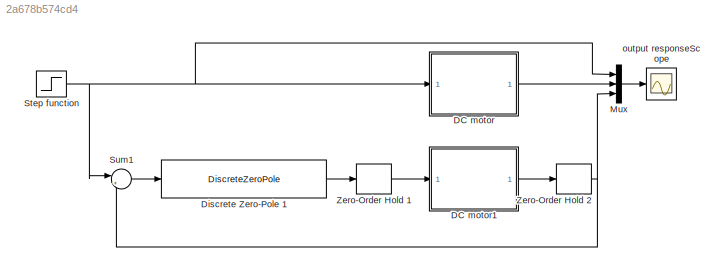
MODEL slx_2a678b574cd4
KIND model
CONFIG AbsTol = auto
CONFIG EnableMultiTasking = off
CONFIG FixedStep = auto
CONFIG MaxStep = auto
CONFIG MinStep = auto
CONFIG RelTol = 1e-3
CONFIG SampleTimeConstraint = Unconstrained
CONFIG Solver = VariableStepAuto
CONFIG SolverName = VariableStepAuto
CONFIG StartTime = 0.0
CONFIG StopTime = 0.2
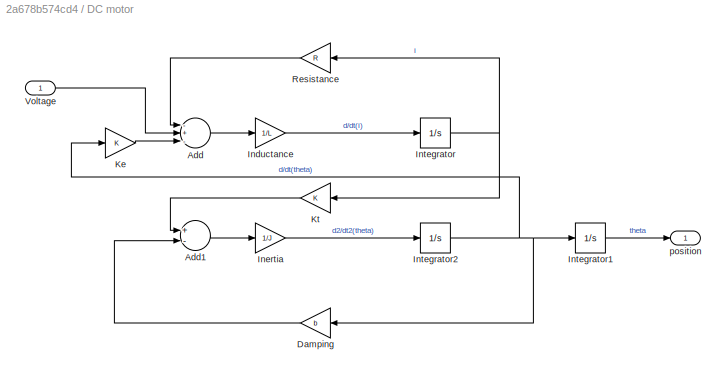
BLOCK [SubSystem] DC motor
  Ports = [1, 1]
  RequestExecContextInheritance = off
BLOCK [Sum] DC motor/Add
  InputSameDT = off
  Inputs = -+-
  OutDataTypeStr = Inherit: Inherit via internal rule
  Ports = [3, 1]
  SaturateOnIntegerOverflow = off
BLOCK [Sum] DC motor/Add1
  InputSameDT = off
  Inputs = +-
  OutDataTypeStr = Inherit: Inherit via internal rule
  Ports = [2, 1]
  SaturateOnIntegerOverflow = off
BLOCK [Gain] DC motor/Damping
  Gain = b
  OutDataTypeStr = Inherit: Inherit via internal rule
  ParamDataTypeStr = Inherit: Inherit via internal rule
  SaturateOnIntegerOverflow = off
BLOCK [Gain] DC motor/Inductance
  Gain = 1/L
  OutDataTypeStr = Inherit: Inherit via internal rule
  ParamDataTypeStr = Inherit: Inherit via internal rule
  SaturateOnIntegerOverflow = off
BLOCK [Gain] DC motor/Inertia
  Gain = 1/J
  OutDataTypeStr = Inherit: Inherit via internal rule
  ParamDataTypeStr = Inherit: Inherit via internal rule
  SaturateOnIntegerOverflow = off
BLOCK [Integrator] DC motor/Integrator
  Ports = [1, 1]
BLOCK [Integrator] DC motor/Integrator1
  Ports = [1, 1]
BLOCK [Integrator] DC motor/Integrator2
  Ports = [1, 1]
BLOCK [Gain] DC motor/Ke
  Gain = K
  OutDataTypeStr = Inherit: Inherit via internal rule
  ParamDataTypeStr = Inherit: Inherit via internal rule
  SaturateOnIntegerOverflow = off
BLOCK [Gain] DC motor/Kt
  Gain = K
  OutDataTypeStr = Inherit: Inherit via internal rule
  ParamDataTypeStr = Inherit: Inherit via internal rule
  SaturateOnIntegerOverflow = off
BLOCK [Gain] DC motor/Resistance
  Gain = R
  OutDataTypeStr = Inherit: Inherit via internal rule
  ParamDataTypeStr = Inherit: Inherit via internal rule
  SaturateOnIntegerOverflow = off
BLOCK [Inport] DC motor/Voltage
  IconDisplay = Port number
BLOCK [Outport] DC motor/position
  IconDisplay = Port number
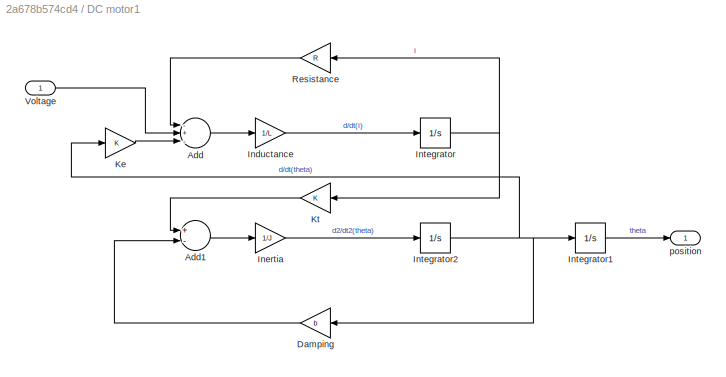
BLOCK [SubSystem] DC motor1
  Ports = [1, 1]
  RequestExecContextInheritance = off
BLOCK [Sum] DC motor1/Add
  InputSameDT = off
  Inputs = -+-
  OutDataTypeStr = Inherit: Inherit via internal rule
  Ports = [3, 1]
  SaturateOnIntegerOverflow = off
BLOCK [Sum] DC motor1/Add1
  InputSameDT = off
  Inputs = +-
  OutDataTypeStr = Inherit: Inherit via internal rule
  Ports = [2, 1]
  SaturateOnIntegerOverflow = off
BLOCK [Gain] DC motor1/Damping
  Gain = b
  OutDataTypeStr = Inherit: Inherit via internal rule
  ParamDataTypeStr = Inherit: Inherit via internal rule
  SaturateOnIntegerOverflow = off
BLOCK [Gain] DC motor1/Inductance
  Gain = 1/L
  OutDataTypeStr = Inherit: Inherit via internal rule
  ParamDataTypeStr = Inherit: Inherit via internal rule
  SaturateOnIntegerOverflow = off
BLOCK [Gain] DC motor1/Inertia
  Gain = 1/J
  OutDataTypeStr = Inherit: Inherit via internal rule
  ParamDataTypeStr = Inherit: Inherit via internal rule
  SaturateOnIntegerOverflow = off
BLOCK [Integrator] DC motor1/Integrator
  Ports = [1, 1]
BLOCK [Integrator] DC motor1/Integrator1
  Ports = [1, 1]
BLOCK [Integrator] DC motor1/Integrator2
  Ports = [1, 1]
BLOCK [Gain] DC motor1/Ke
  Gain = K
  OutDataTypeStr = Inherit: Inherit via internal rule
  ParamDataTypeStr = Inherit: Inherit via internal rule
  SaturateOnIntegerOverflow = off
BLOCK [Gain] DC motor1/Kt
  Gain = K
  OutDataTypeStr = Inherit: Inherit via internal rule
  ParamDataTypeStr = Inherit: Inherit via internal rule
  SaturateOnIntegerOverflow = off
BLOCK [Gain] DC motor1/Resistance
  Gain = R
  OutDataTypeStr = Inherit: Inherit via internal rule
  ParamDataTypeStr = Inherit: Inherit via internal rule
  SaturateOnIntegerOverflow = off
BLOCK [Inport] DC motor1/Voltage
  IconDisplay = Port number
BLOCK [Outport] DC motor1/position
  IconDisplay = Port number
BLOCK [DiscreteZeroPole] Discrete Zero-Pole 1
  Gain = 800
  Poles = [-0.98 0.6 1]
  SampleTime = -1
  Zeros = [0.95 0.8 0.8]
BLOCK [Mux] Mux
  DisplayOption = bar
  Inputs = 3
  Ports = [3, 1]
BLOCK [Step] Step function
  SampleTime = 0
  Time = 0
BLOCK [Sum] Sum1
  IconShape = round
  InputSameDT = off
  Inputs = |+-
  OutDataTypeStr = Inherit: Inherit via internal rule
  Ports = [2, 1]
  SaturateOnIntegerOverflow = off
BLOCK [ZeroOrderHold] Zero-Order Hold 1
  SampleTime = 0.001
BLOCK [ZeroOrderHold] Zero-Order Hold 2
  SampleTime = 0.001
BLOCK [Scope] output responseScope 
  Floating = off
  NumInputPorts = 1
  Ports = [1]
  ScopeSpecificationString = Simulink.scopes.TimeScopeBlockCfg('CurrentConfiguration', extmgr.ConfigurationSet(extmgr.Configuration('Core','General UI',true),extmgr.Configuration('Core','Source UI',true),extmgr.Configuration('Sources','WiredSimulink',true),extmgr.Configuration('Visuals','Time Domain',true,'SerializedDisplays',{struct('MinYLimReal','-0.82005','MaxYLimReal','7.38047','YLabelReal','','MinYLimMag','0.00000','MaxY...<+1399ch>
LINE DC motor/Add1:1 -> DC motor/Inertia:1
LINE DC motor/Add:1 -> DC motor/Inductance:1
LINE DC motor/Damping:1 -> DC motor/Add1:2
LINE DC motor/Inductance:1 -> DC motor/Integrator:1
LINE DC motor/Inertia:1 -> DC motor/Integrator2:1
LINE DC motor/Integrator1:1 -> DC motor/position:1
NET DC motor/Integrator2:1 -> DC motor/Damping:1, DC motor/Integrator1:1, DC motor/Ke:1
NET DC motor/Integrator:1 -> DC motor/Kt:1, DC motor/Resistance:1
LINE DC motor/Ke:1 -> DC motor/Add:3
LINE DC motor/Kt:1 -> DC motor/Add1:1
LINE DC motor/Resistance:1 -> DC motor/Add:1
LINE DC motor/Voltage:1 -> DC motor/Add:2
LINE DC motor1/Add1:1 -> DC motor1/Inertia:1
LINE DC motor1/Add:1 -> DC motor1/Inductance:1
LINE DC motor1/Damping:1 -> DC motor1/Add1:2
LINE DC motor1/Inductance:1 -> DC motor1/Integrator:1
LINE DC motor1/Inertia:1 -> DC motor1/Integrator2:1
LINE DC motor1/Integrator1:1 -> DC motor1/position:1
NET DC motor1/Integrator2:1 -> DC motor1/Damping:1, DC motor1/Integrator1:1, DC motor1/Ke:1
NET DC motor1/Integrator:1 -> DC motor1/Kt:1, DC motor1/Resistance:1
LINE DC motor1/Ke:1 -> DC motor1/Add:3
LINE DC motor1/Kt:1 -> DC motor1/Add1:1
LINE DC motor1/Resistance:1 -> DC motor1/Add:1
LINE DC motor1/Voltage:1 -> DC motor1/Add:2
LINE DC motor1:1 -> Zero-Order Hold 2:1
LINE DC motor:1 -> Mux:2
LINE Discrete Zero-Pole 1:1 -> Zero-Order Hold 1:1
LINE Mux:1 -> output responseScope :1
NET Step function:1 -> DC motor:1, Mux:1, Sum1:1
LINE Sum1:1 -> Discrete Zero-Pole 1:1
LINE Zero-Order Hold 1:1 -> DC motor1:1
NET Zero-Order Hold 2:1 -> Mux:3, Sum1:2
note: NET lines group one-source signal fan-out (src -> all destinations, sorted); 1:1 wires keep LINE
